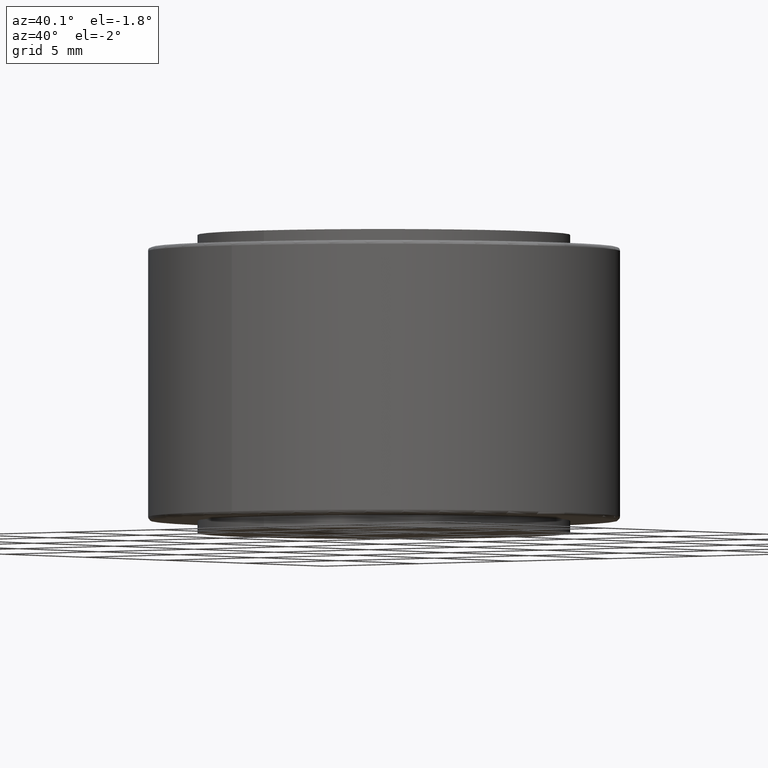
[diagram: clean part render]
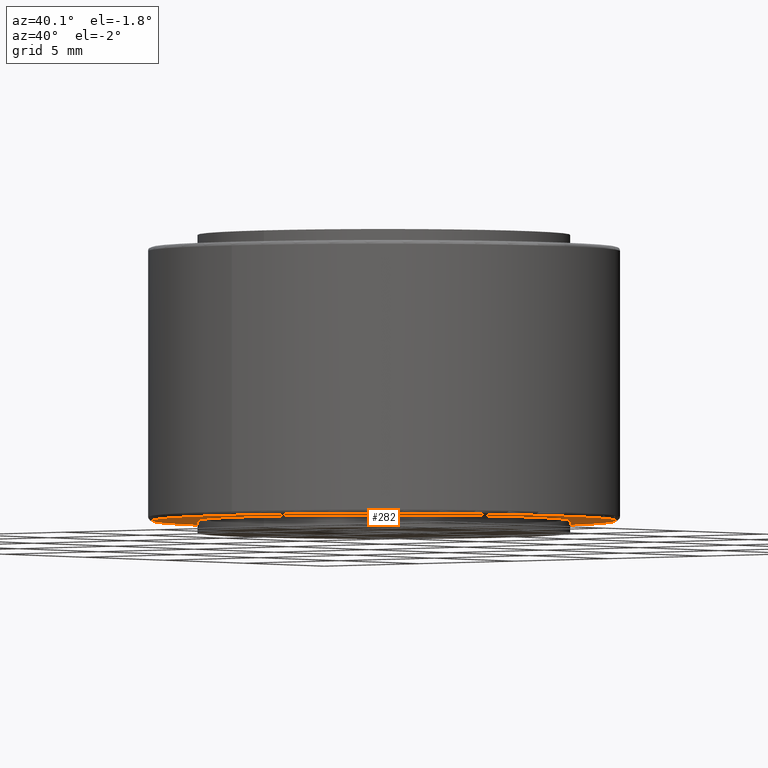
[diagram: same view with one face highlighted and labeled with its STEP entity id]
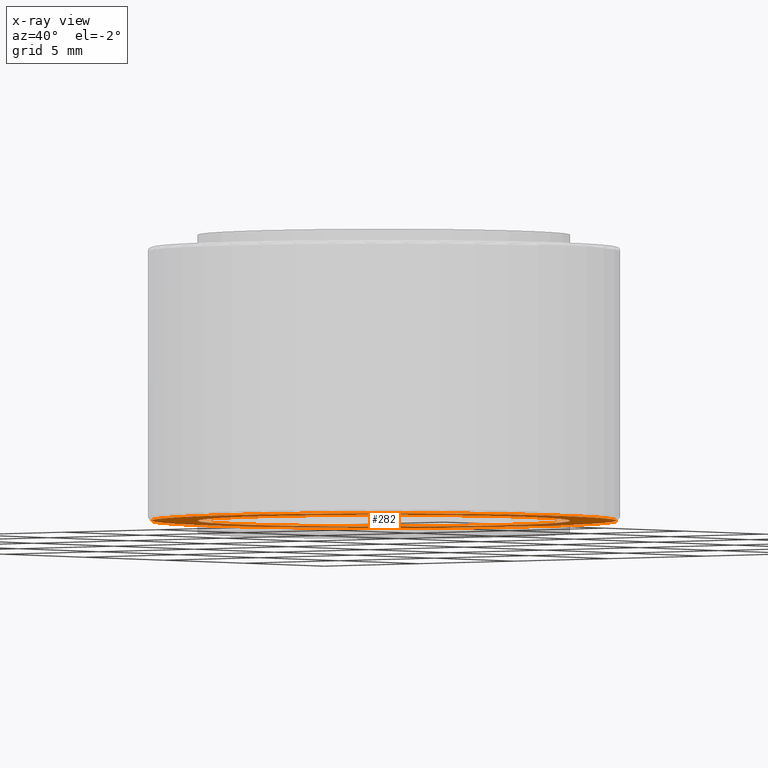
[diagram: x-ray of the same camera — body ghosted, the highlighted face saturated]
A machine part, auxiliary view. The second image highlights one B-rep face of the part: STEP entity #282.
The next image is the same camera in x-ray: the body ghosted, the highlighted face saturated — about 36% of this face is hidden behind the body in this view.
In plain terms, the highlighted planar face has unit normal (0, 0, -1).
Its self-contained STEP definition (entity closure, byte-faithful):
#47=FACE_BOUND('',#95,.T.);
#55=PLANE('',#343);
#70=FACE_OUTER_BOUND('',#94,.T.);
#94=EDGE_LOOP('',(#236));
#95=EDGE_LOOP('',(#237));
#123=CIRCLE('',#341,9.35);
#125=CIRCLE('',#344,7.5);
#149=VERTEX_POINT('',#514);
#150=VERTEX_POINT('',#518);
#179=EDGE_CURVE('',#149,#149,#123,.T.);
#181=EDGE_CURVE('',#150,#150,#125,.T.);
#236=ORIENTED_EDGE('',*,*,#179,.T.);
#237=ORIENTED_EDGE('',*,*,#181,.F.);
#282=ADVANCED_FACE('',(#70,#47),#55,.T.);
#341=AXIS2_PLACEMENT_3D('',#515,#422,#423);
#343=AXIS2_PLACEMENT_3D('',#517,#426,#427);
#344=AXIS2_PLACEMENT_3D('',#519,#428,#429);
#422=DIRECTION('center_axis',(0.,3.06161699786839E-16,-1.));
#423=DIRECTION('ref_axis',(1.,0.,0.));
#426=DIRECTION('center_axis',(0.,3.06161699786839E-16,-1.));
#427=DIRECTION('ref_axis',(-1.,0.,0.));
#428=DIRECTION('center_axis',(0.,3.06161699786839E-16,-1.));
#429=DIRECTION('ref_axis',(1.,0.,0.));
#514=CARTESIAN_POINT('',(9.35,-6.0423621670547E-16,-5.5));
#515=CARTESIAN_POINT('Origin',(0.,5.40808540497305E-16,-5.5));
#517=CARTESIAN_POINT('Origin',(0.,7.5,-5.5));
#518=CARTESIAN_POINT('',(-9.18485099360515E-16,-7.5,-5.5));
#519=CARTESIAN_POINT('Origin',(0.,5.40808540497305E-16,-5.5));